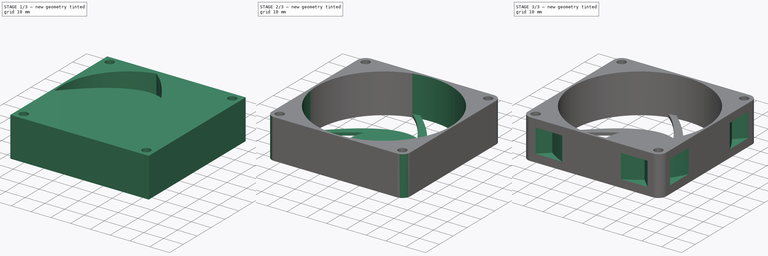
[diagram: build sequence overview — one tinted view per stage of 3, left to right]
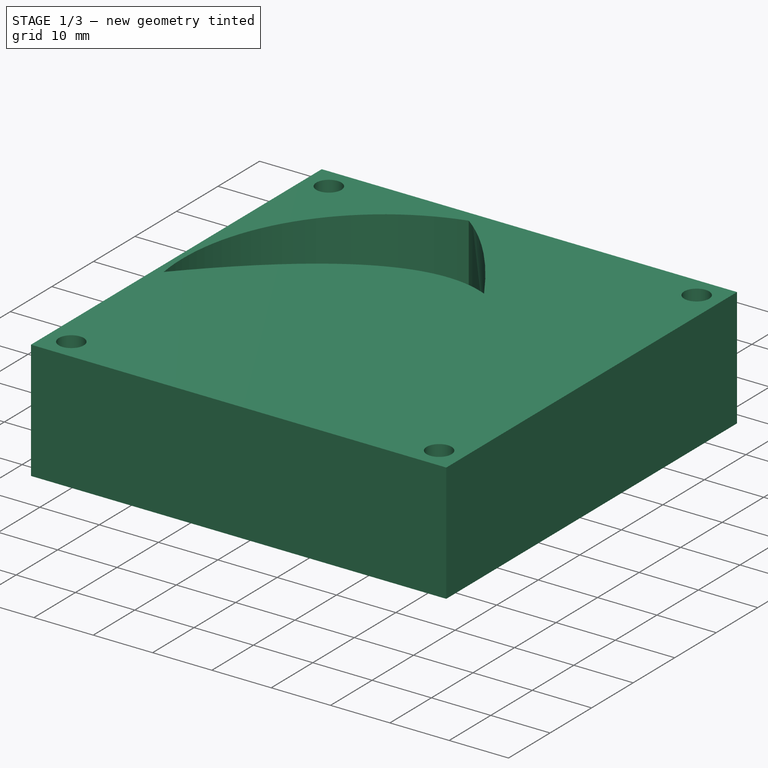
[diagram: stage 1 of 3 — iso view after this stage's code; geometry added in this stage tinted green]
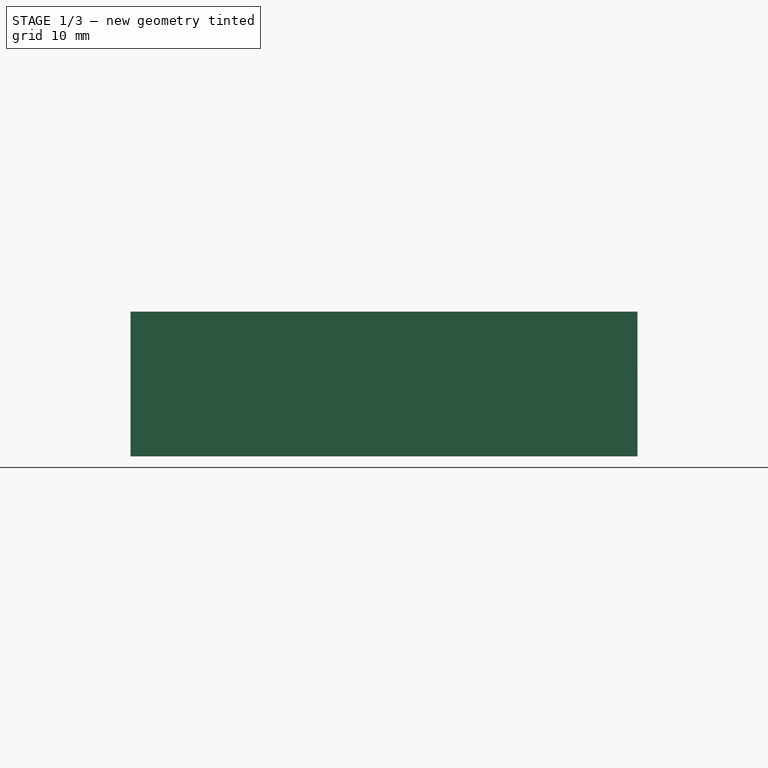
[diagram: stage 1 of 3 — front view after this stage's code; geometry added in this stage tinted green]
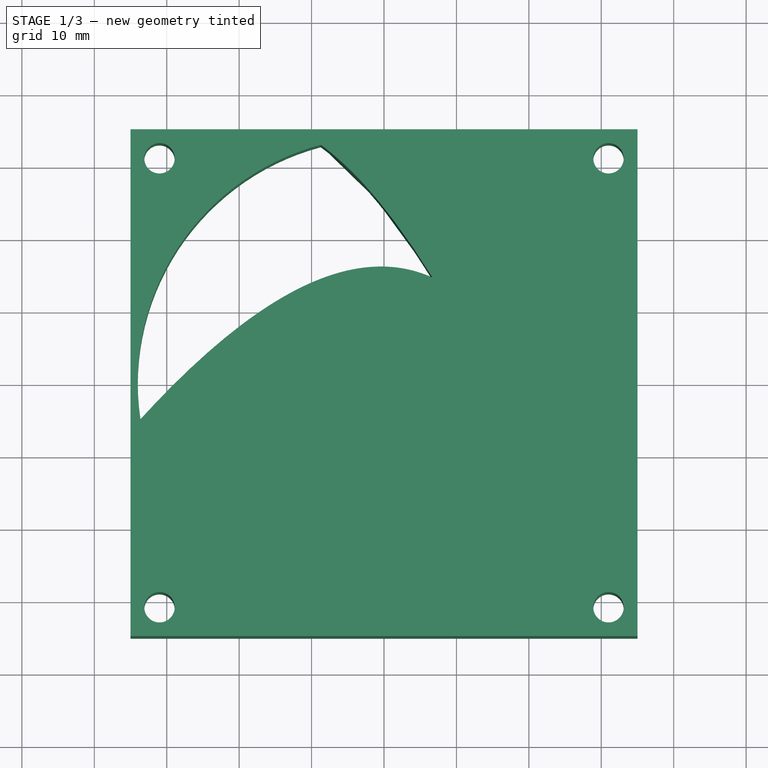
[diagram: stage 1 of 3 — top view after this stage's code; geometry added in this stage tinted green]
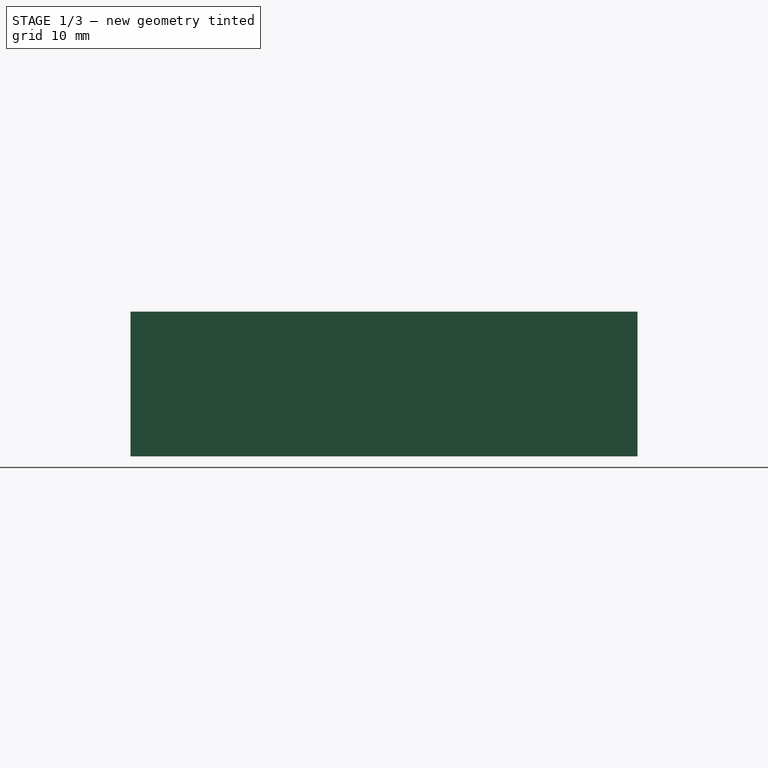
[diagram: stage 1 of 3 — right view after this stage's code; geometry added in this stage tinted green]
FCSTD DOCUMENT  (FreeCAD 0.17R13509 (Git))
Label: Fan CoolMaster 70mmx70mm
License: CreativeCommons Attribution-ShareAlike
LicenseURL: http://creativecommons.org/licenses/by-sa/4.0/
objects: Sketcher::SketchObject×4, PartDesign::Pocket×3, PartDesign::PolarPattern×2, PartDesign::Pad×1, PartDesign::Fillet×1, PartDesign::Body×1, App::Part×1
note: 16 computed .brp shape members not serialized (recipe doc carries the construction recipe); baked Part::Feature solids carry a one-line shape summary decoded from their .brp

FEATURE [Sketcher::SketchObject] Sketch011
  MapMode = 5
  Support = -> [XY_Plane005]
  sketch-geometry (12):
    g0: LineSegment StartX=-35 StartY=35 StartZ=0 EndX=35 EndY=35 EndZ=0
    g1: LineSegment StartX=35 StartY=35 StartZ=0 EndX=35 EndY=-35 EndZ=0
    g2: LineSegment StartX=35 StartY=-35 StartZ=0 EndX=-35 EndY=-35 EndZ=0
    g3: LineSegment StartX=-35 StartY=-35 StartZ=0 EndX=-35 EndY=35 EndZ=0
    g4: LineSegment [constr] StartX=-31 StartY=31 StartZ=0 EndX=31 EndY=31 EndZ=0
    g5: LineSegment [constr] StartX=31 StartY=31 StartZ=0 EndX=31 EndY=-31 EndZ=0
    g6: LineSegment [constr] StartX=31 StartY=-31 StartZ=0 EndX=-31 EndY=-31 EndZ=0
    g7: LineSegment [constr] StartX=-31 StartY=-31 StartZ=0 EndX=-31 EndY=31 EndZ=0
    g8: Circle CenterX=-31 CenterY=31 CenterZ=0 NormalX=0 NormalY=0 NormalZ=1 AngleXU=0 Radius=2.1
    g9: Circle CenterX=31 CenterY=31 CenterZ=0 NormalX=0 NormalY=0 NormalZ=1 AngleXU=0 Radius=2.1
    g10: Circle CenterX=31 CenterY=-31 CenterZ=0 NormalX=0 NormalY=0 NormalZ=1 AngleXU=0 Radius=2.1
    g11: Circle CenterX=-31 CenterY=-31 CenterZ=0 NormalX=0 NormalY=0 NormalZ=1 AngleXU=0 Radius=2.1
  constraints (32):
    c: Coincident(g0,g1)
    c: Coincident(g1,g2)
    c: Coincident(g2,g3)
    c: Coincident(g3,g0)
    c: Horizontal(g0)
    c: Horizontal(g2)
    c: Vertical(g1)
    c: Vertical(g3)
    c: Symmetric(g0,g0,g-2)
    c: Symmetric(g0,g2,g-1)
    c: Equal(g0,g3)
    c: DistanceX(g0,g0) = 70
    c: Coincident(g4,g5)
    c: Coincident(g5,g6)
    c: Coincident(g6,g7)
    c: Coincident(g7,g4)
    c: Horizontal(g4)
    c: Horizontal(g6)
    c: Vertical(g5)
    c: Vertical(g7)
    c: Symmetric(g4,g4,g-2)
    c: Symmetric(g4,g5,g-1)
    c: Equal(g5,g4)
    c: DistanceX(g4,g4) = 62
    c: Coincident(g9,g4)
    c: Coincident(g10,g5)
    c: Coincident(g11,g6)
    c: Equal(g11,g10)
    c: Equal(g10,g9)
    c: Equal(g9,g8)
    c: Radius(g8) = 2.1
    c: Coincident(g8,g4)
FEATURE [PartDesign::Pad] Pad004
  Length = 20
  Length2 = 100
  Midplane = true
  Profile = -> Sketch011
  Refine = true
  Type = 0
FEATURE [Sketcher::SketchObject] Sketch012
  MapMode = 5
  Placement = pos=(0,0,10) rot=(0,0,1;0rad)
  Support = -> [Pad004]
  sketch-geometry (15):
    g0: ArcOfCircle CenterX=0 CenterY=0 CenterZ=0 NormalX=0 NormalY=0 NormalZ=1 AngleXU=0 Radius=34 StartAngle=1.83039 EndAngle=3.29
    g1: Circle [constr] CenterX=6.68564 CenterY=14.5362 CenterZ=0 NormalX=0 NormalY=0 NormalZ=1 AngleXU=0 Radius=3
    g2: Circle [constr] CenterX=-9.20132 CenterY=21.7061 CenterZ=0 NormalX=0 NormalY=0 NormalZ=1 AngleXU=0 Radius=3
    g3: Circle [constr] CenterX=-33.6263 CenterY=-5.02742 CenterZ=0 NormalX=0 NormalY=0 NormalZ=1 AngleXU=0 Radius=3
    g4: BSplineCurve PolesCount=3 KnotsCount=2 Degree=2 IsPeriodic=0
    g5: GeomPoint [constr] X=6.68564 Y=14.5362 Z=0
    g6: GeomPoint [constr] X=-33.6263 Y=-5.02742 Z=0
    g7: Circle [constr] CenterX=6.68564 CenterY=14.5362 CenterZ=0 NormalX=0 NormalY=0 NormalZ=1 AngleXU=0 Radius=2
    g8: Circle [constr] CenterX=-1.35387 CenterY=27.4951 CenterZ=0 NormalX=0 NormalY=0 NormalZ=1 AngleXU=0 Radius=2
    g9: Circle [constr] CenterX=-8.72748 CenterY=32.8608 CenterZ=0 NormalX=0 NormalY=0 NormalZ=1 AngleXU=0 Radius=2
    g10: BSplineCurve PolesCount=3 KnotsCount=2 Degree=2 IsPeriodic=0
    g11: GeomPoint [constr] X=6.68564 Y=14.5362 Z=0
    g12: GeomPoint [constr] X=-8.72748 Y=32.8608 Z=0
    g13: Circle [constr] CenterX=0 CenterY=0 CenterZ=0 NormalX=0 NormalY=0 NormalZ=1 AngleXU=0 Radius=34
    g14: Circle [constr] CenterX=0 CenterY=0 CenterZ=0 NormalX=0 NormalY=0 NormalZ=1 AngleXU=0 Radius=16
  constraints (27):
    c: Coincident(g0,g-1)
    c: Radius(g0) = 34
    c: Radius(g1) = 3
    c: Equal(g1,g2)
    c: Equal(g1,g3)
    c: InternalAlignment(g1,g4)
    c: InternalAlignment(g2,g4)
    c: InternalAlignment(g3,g4)
    c: InternalAlignment(g5,g4)
    c: InternalAlignment(g6,g4)
    c: Radius(g7) = 2
    c: Equal(g7,g8)
    c: Equal(g7,g9)
    c: InternalAlignment(g7,g10)
    c: InternalAlignment(g8,g10)
    c: InternalAlignment(g9,g10)
    c: InternalAlignment(g11,g10)
    c: InternalAlignment(g12,g10)
    c: Coincident(g0,g9)
    c: Coincident(g0,g3)
    c: Coincident(g7,g1)
    c: PointOnObject(g13,g-1)
    c: Coincident(g14,g13)
    c: Coincident(g13,g-1)
    c: Radius(g14) = 16
    c: Radius(g13) = 34
    c: PointOnObject(g1,g14)
FEATURE [PartDesign::Pocket] Pocket007
  BaseFeature = -> Pad004
  Length = 5
  Length2 = 100
  Profile = -> Sketch012
  Refine = true
  Type = 1
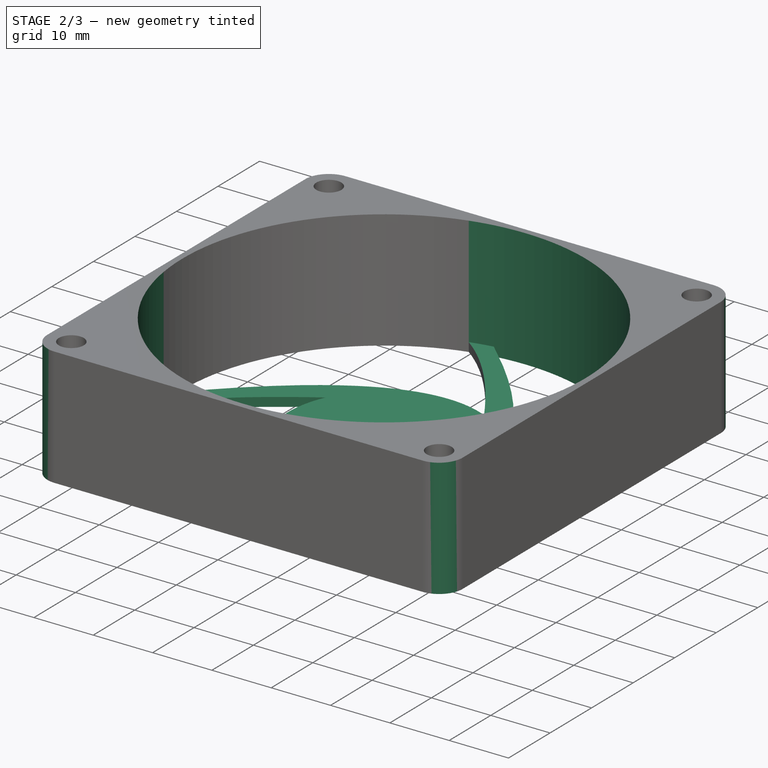
[diagram: stage 2 of 3 — iso view after this stage's code; geometry added in this stage tinted green]
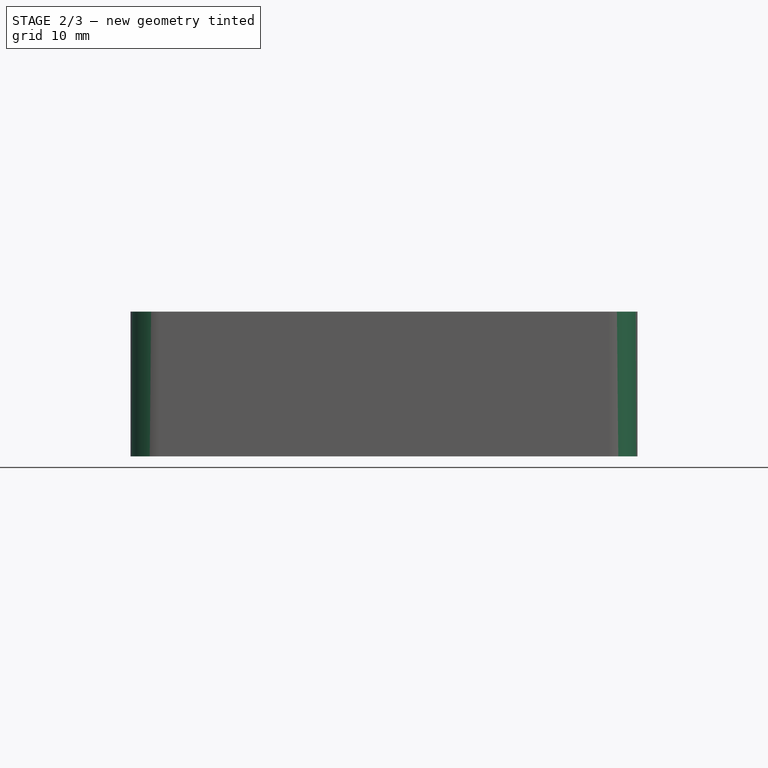
[diagram: stage 2 of 3 — front view after this stage's code; geometry added in this stage tinted green]
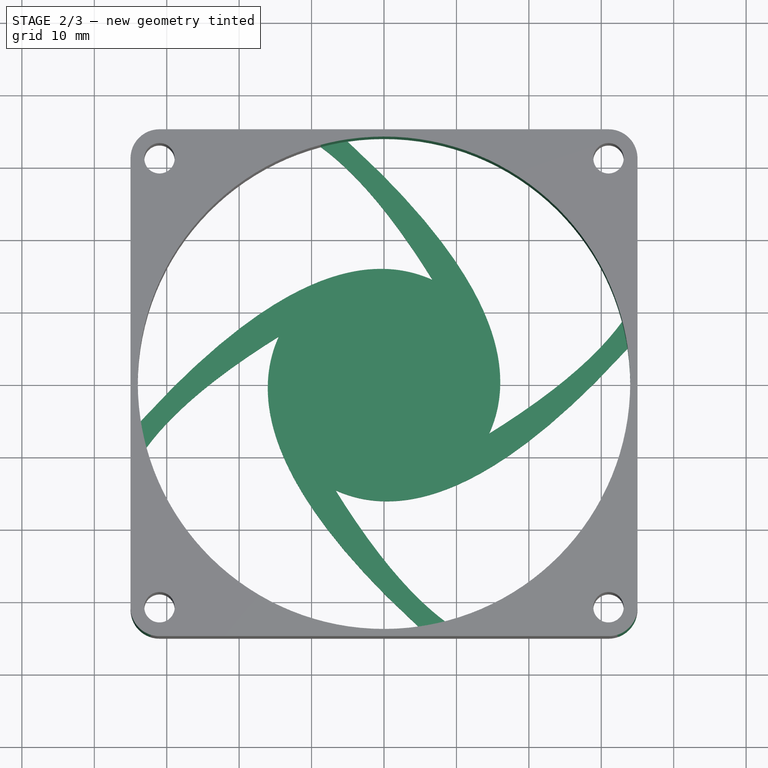
[diagram: stage 2 of 3 — top view after this stage's code; geometry added in this stage tinted green]
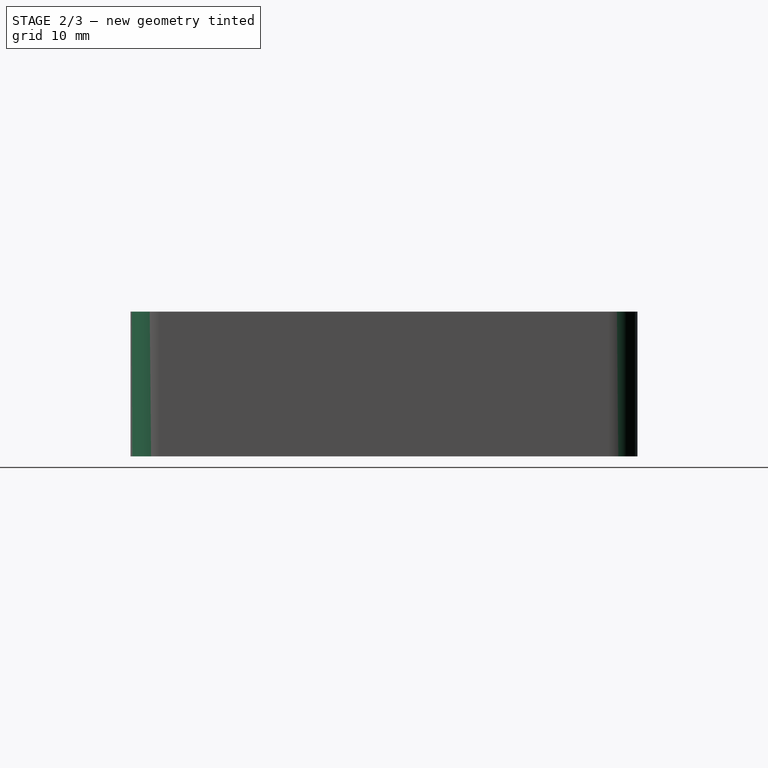
[diagram: stage 2 of 3 — right view after this stage's code; geometry added in this stage tinted green]
FEATURE [PartDesign::PolarPattern] PolarPattern
  Angle = 360
  Axis = -> Sketch012 [N_Axis]
  BaseFeature = -> Pocket007
  Occurrences = 4
  Originals = -> [Pocket007]
  Refine = true
FEATURE [PartDesign::Fillet] Fillet004
  Base = -> PolarPattern [Edge2,Edge1,Edge8,Edge5]
  BaseFeature = -> PolarPattern
  Radius = 4
FEATURE [Sketcher::SketchObject] Sketch013
  MapMode = 5
  Placement = pos=(0,0,10) rot=(0,0,1;0rad)
  Support = -> [Fillet004]
  sketch-geometry (1):
    g0: Circle CenterX=0 CenterY=0 CenterZ=0 NormalX=0 NormalY=0 NormalZ=1 AngleXU=0 Radius=34
  constraints (2):
    c: Coincident(g0,g-1)
    c: Radius(g0) = 34
FEATURE [PartDesign::Pocket] Pocket008
  BaseFeature = -> Fillet004
  Length = 18.5
  Length2 = 100
  Profile = -> Sketch013
  Refine = true
  Type = 0
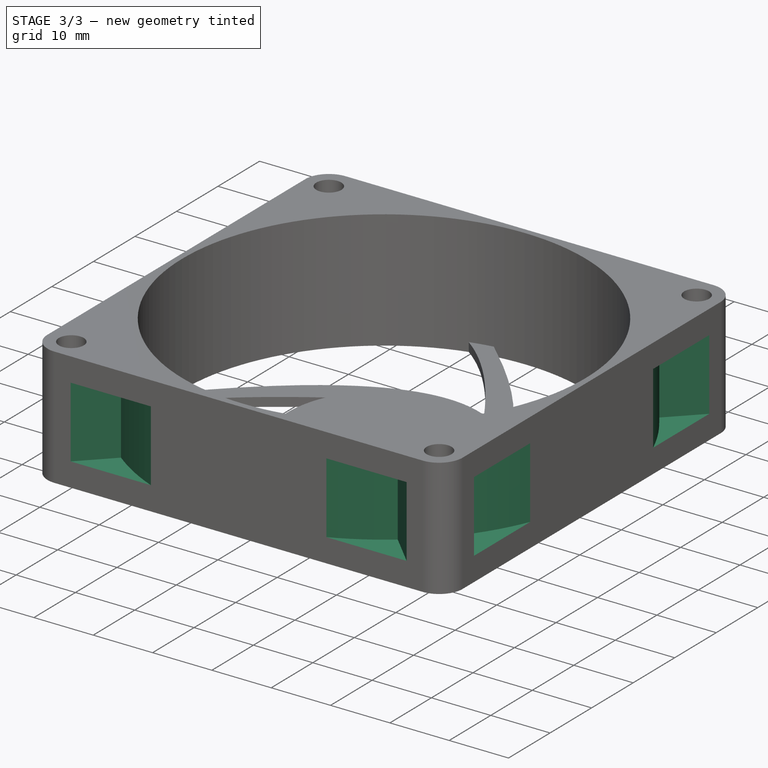
[diagram: stage 3 of 3 — iso view after this stage's code; geometry added in this stage tinted green]
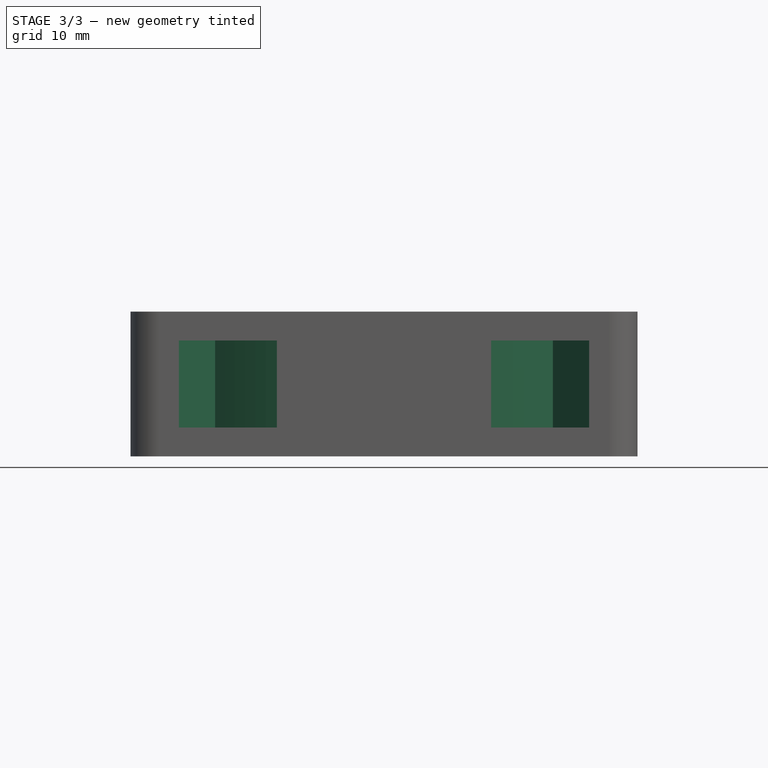
[diagram: stage 3 of 3 — front view after this stage's code; geometry added in this stage tinted green]
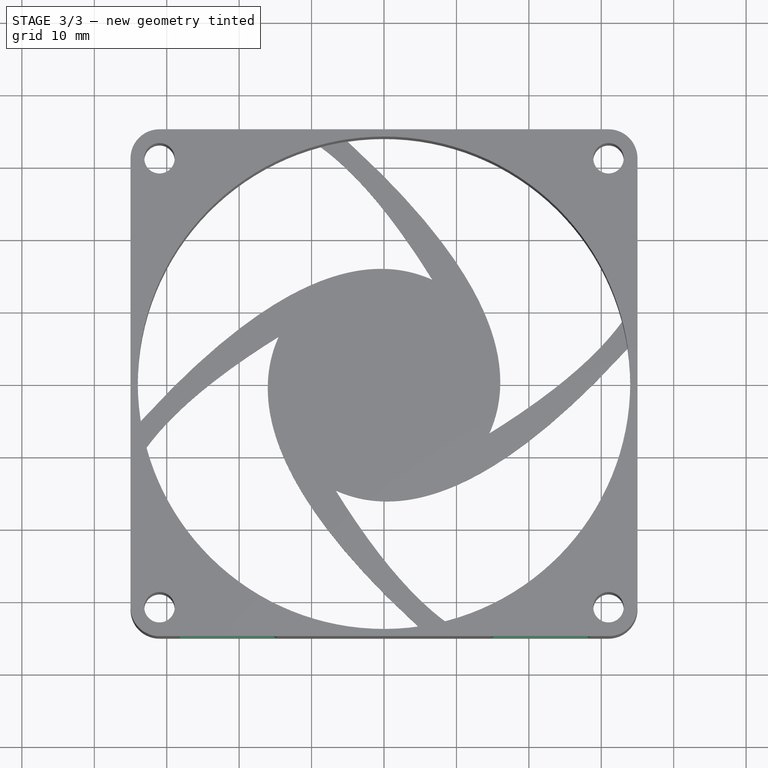
[diagram: stage 3 of 3 — top view after this stage's code; geometry added in this stage tinted green]
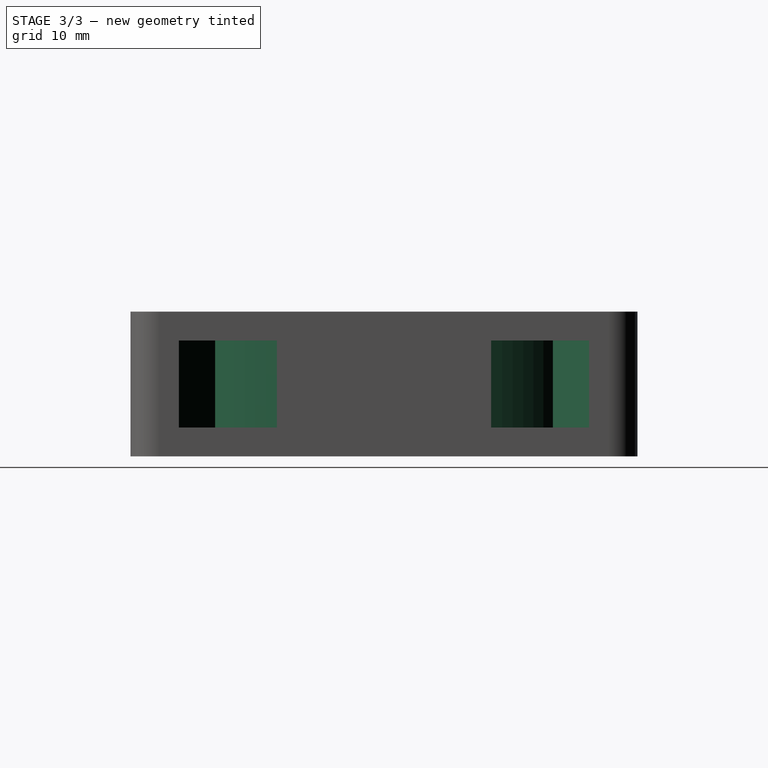
[diagram: stage 3 of 3 — right view after this stage's code; geometry added in this stage tinted green]
FEATURE [Sketcher::SketchObject] Sketch014
  MapMode = 5
  Support = -> [XY_Plane005]
  sketch-geometry (6):
    g0: ArcOfCircle CenterX=0 CenterY=0 CenterZ=0 NormalX=0 NormalY=0 NormalZ=1 AngleXU=0 Radius=38 StartAngle=0.909951 EndAngle=2.23164
    g1: LineSegment StartX=-23.3238 StartY=30 StartZ=0 EndX=-29 EndY=35.6762 EndZ=0
    g2: LineSegment StartX=-29 StartY=35.6762 StartZ=0 EndX=-29 EndY=47.6762 EndZ=0
    g3: LineSegment StartX=-29 StartY=47.6762 StartZ=0 EndX=29 EndY=47.6762 EndZ=0
    g4: LineSegment StartX=29 StartY=47.6762 StartZ=0 EndX=29 EndY=35.6762 EndZ=0
    g5: LineSegment StartX=29 StartY=35.6762 StartZ=0 EndX=23.3238 EndY=30 EndZ=0
  constraints (18):
    c: Coincident(g0,g-1)
    c: Coincident(g1,g2)
    c: Vertical(g2)
    c: Coincident(g2,g3)
    c: Horizontal(g3)
    c: Coincident(g3,g4)
    c: Vertical(g4)
    c: Coincident(g4,g5)
    c: Coincident(g0,g5)
    c: Coincident(g0,g1)
    c: Radius(g0) = 38
    c: Symmetric(g0,g0,g-2)
    c: Angle(g1,g2) = 2.35619
    c: Equal(g4,g2)
    c: Symmetric(g3,g2,g-2)
    c: DistanceX(g3,g3) = 58
    c: DistanceY(g2,g2) = 12
    c: DistanceY(g-1,g0) = 30
FEATURE [PartDesign::Pocket] Pocket009
  BaseFeature = -> Pocket008
  Length = 12
  Length2 = 100
  Midplane = true
  Profile = -> Sketch014
  Refine = true
  Type = 0
FEATURE [PartDesign::PolarPattern] PolarPattern001
  Angle = 360
  Axis = -> Sketch014 [N_Axis]
  BaseFeature = -> Pocket009
  Occurrences = 4
  Originals = -> [Pocket009]
  Refine = true
FEATURE [PartDesign::Body] Body002
  Group = -> [Sketch011,Pad004,Sketch012,Pocket007,PolarPattern,Fillet004,Sketch013,Pocket008,Sketch014,Pocket009,PolarPattern001]
  Origin = -> Origin005
  Tip = -> PolarPattern001
FEATURE [App::Part] Part002  label="Ventilador"
  Group = -> [Body002]
  License = CC BY 3.0
  LicenseURL = http://creativecommons.org/licenses/by/3.0/
  Origin = -> Origin004
  Placement = pos=(0,0,57) rot=(0,0,1;0rad)
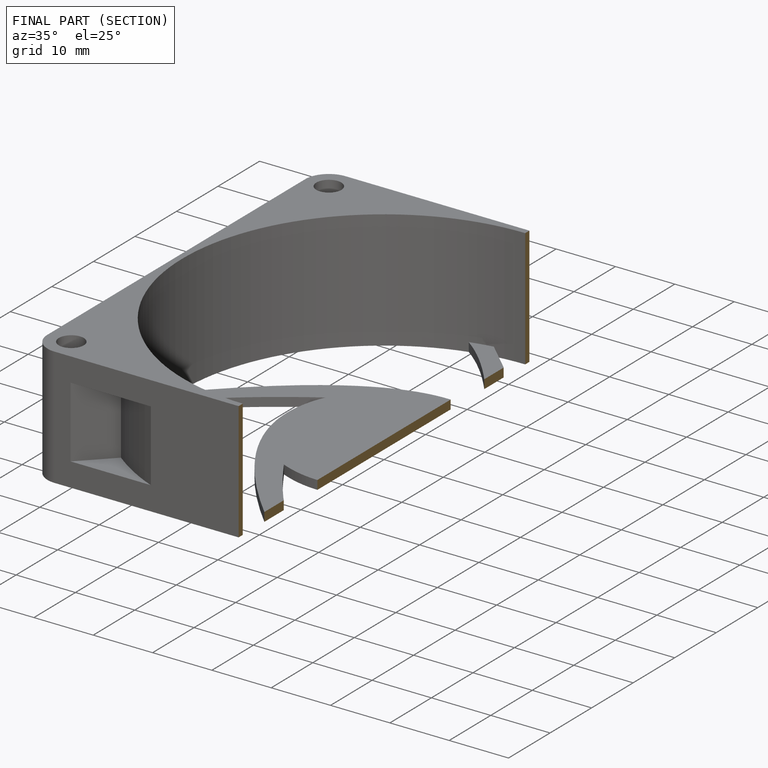
[diagram: finished part — half-section view (interior)]
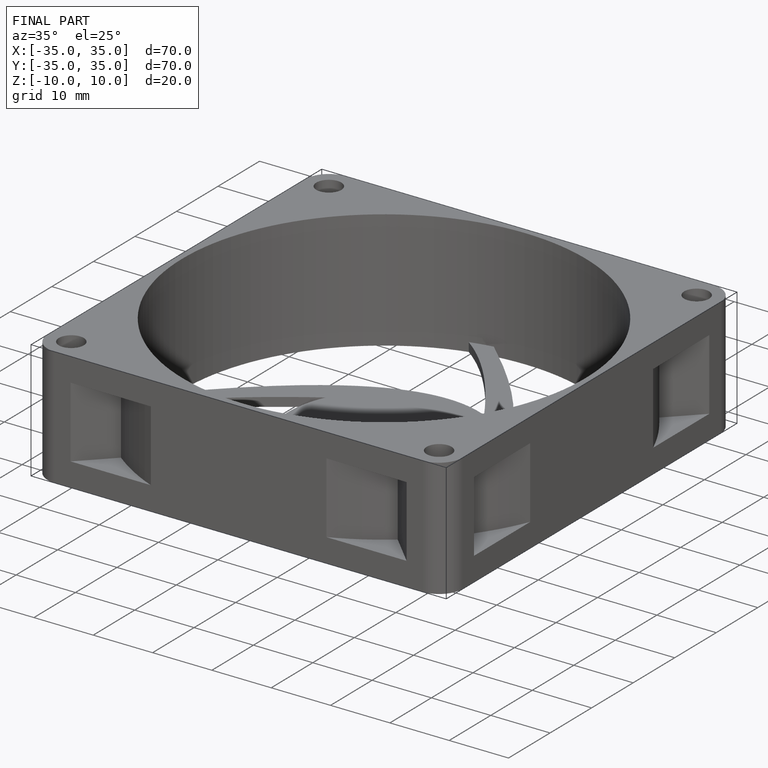
[diagram: finished part — iso view with bounding-box wireframe]
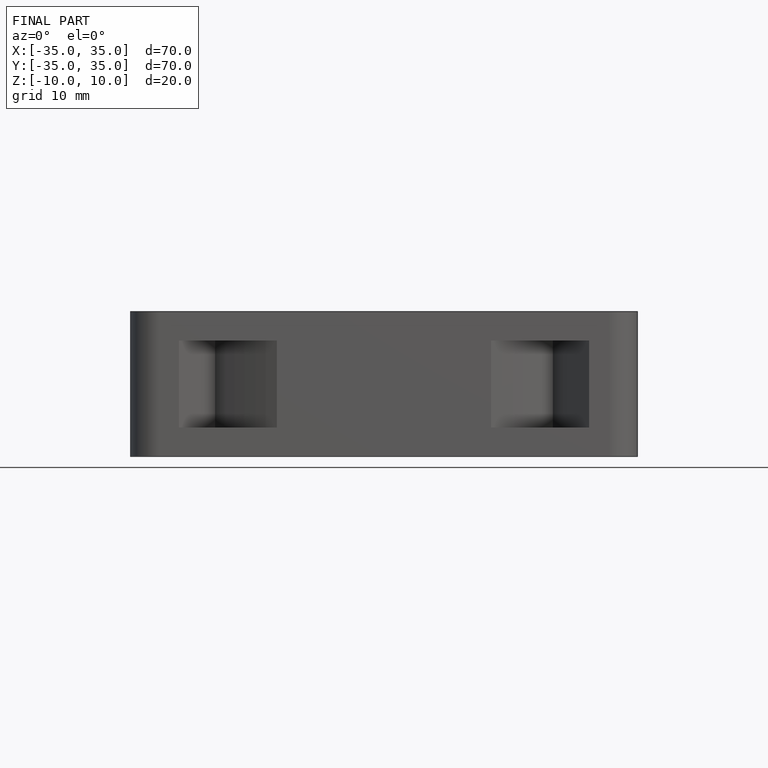
[diagram: finished part — front view with bounding-box wireframe]
